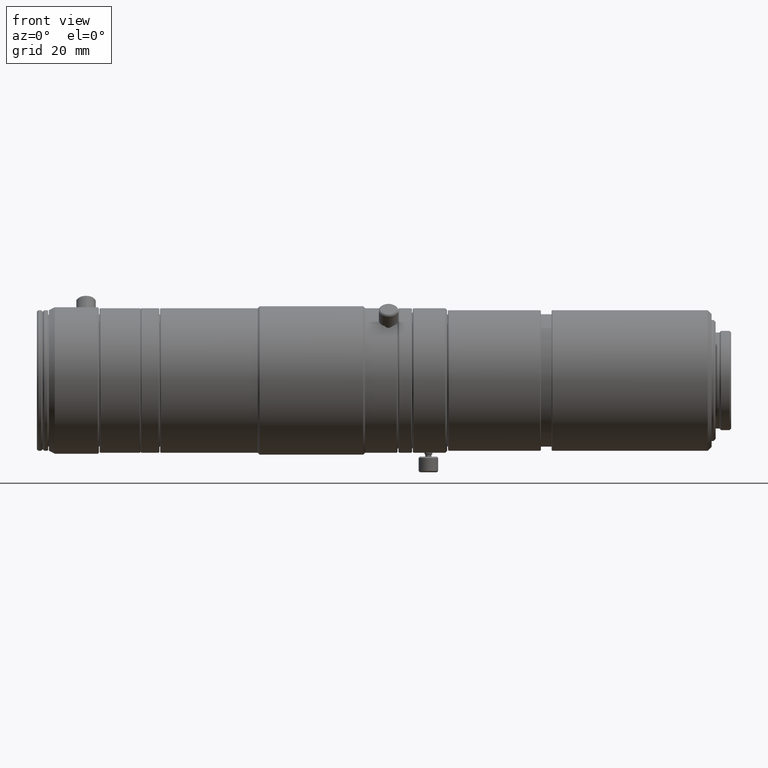
[diagram: clean part render]
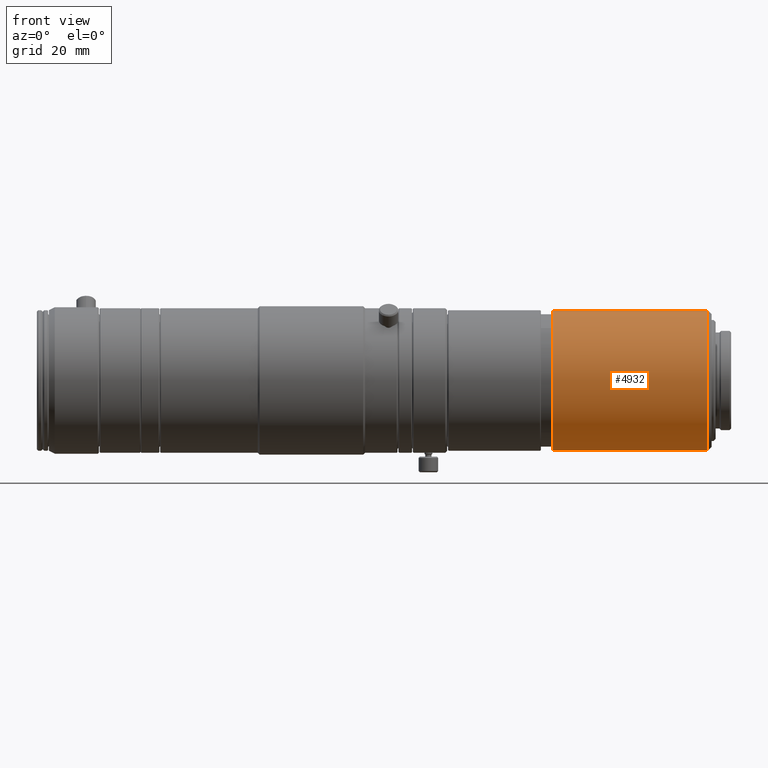
[diagram: same view with one face highlighted and labeled with its STEP entity id]
A machine part, front view. The second image highlights one B-rep face of the part: STEP entity #4932.
In plain terms, the highlighted cylindrical surface (partial cylindrical patch) has radius 18 mm, axis along (1, -0, -0).
Its self-contained STEP definition (entity closure, byte-faithful):
#227 = ORIENTED_EDGE ( 'NONE', *, *, #5833, .F. ) ;
#257 = ORIENTED_EDGE ( 'NONE', *, *, #5832, .T. ) ;
#274 = ORIENTED_EDGE ( 'NONE', *, *, #5353, .F. ) ;
#288 = ORIENTED_EDGE ( 'NONE', *, *, #5350, .T. ) ;
#478 = VERTEX_POINT ( 'NONE', #4625 ) ;
#479 = VERTEX_POINT ( 'NONE', #4667 ) ;
#483 = VERTEX_POINT ( 'NONE', #4878 ) ;
#484 = VERTEX_POINT ( 'NONE', #4660 ) ;
#901 = FACE_OUTER_BOUND ( 'NONE', #5442, .T. ) ;
#905 = CYLINDRICAL_SURFACE ( 'NONE', #5033, 18.00000000000007100 ) ;
#1151 = LINE ( 'NONE', #1785, #1155 ) ;
#1155 = VECTOR ( 'NONE', #1790, 1000.000000000000000 ) ;
#1157 = LINE ( 'NONE', #1791, #1159 ) ;
#1159 = VECTOR ( 'NONE', #1792, 1000.000000000000000 ) ;
#1359 = DIRECTION ( 'NONE',  ( 0.0000000000000000000, 0.0000000000000000000, -1.000000000000000000 ) ) ;
#1361 = DIRECTION ( 'NONE',  ( 1.000000000000000000, -0.0000000000000000000, -0.0000000000000000000 ) ) ;
#1363 = CARTESIAN_POINT ( 'NONE',  ( 0.0000000000000000000, 0.0000000000000000000, 0.0000000000000000000 ) ) ;
#1785 = CARTESIAN_POINT ( 'NONE',  ( 0.0000000000000000000, 0.0000000000000000000, -18.00000000000007100 ) ) ;
#1790 = DIRECTION ( 'NONE',  ( 1.000000000000000000, -0.0000000000000000000, -0.0000000000000000000 ) ) ;
#1791 = CARTESIAN_POINT ( 'NONE',  ( 0.0000000000000000000, 2.204364238465244500E-015, 18.00000000000007100 ) ) ;
#1792 = DIRECTION ( 'NONE',  ( 1.000000000000000000, -0.0000000000000000000, -0.0000000000000000000 ) ) ;
#2283 = CIRCLE ( 'NONE', #4274, 18.00000000000007100 ) ;
#2284 = CIRCLE ( 'NONE', #4275, 18.00000000000007100 ) ;
#2839 = CARTESIAN_POINT ( 'NONE',  ( -59.32600000000002200, 0.0000000000000000000, 0.0000000000000000000 ) ) ;
#2840 = DIRECTION ( 'NONE',  ( 1.000000000000000000, -0.0000000000000000000, -0.0000000000000000000 ) ) ;
#2841 = DIRECTION ( 'NONE',  ( 0.0000000000000000000, 0.0000000000000000000, -1.000000000000000000 ) ) ;
#2842 = CARTESIAN_POINT ( 'NONE',  ( -19.52600000000001000, 0.0000000000000000000, 0.0000000000000000000 ) ) ;
#2843 = DIRECTION ( 'NONE',  ( 1.000000000000000000, -0.0000000000000000000, -0.0000000000000000000 ) ) ;
#2844 = DIRECTION ( 'NONE',  ( 0.0000000000000000000, 0.0000000000000000000, -1.000000000000000000 ) ) ;
#4274 = AXIS2_PLACEMENT_3D ( 'NONE', #2839, #2840, #2841 ) ;
#4275 = AXIS2_PLACEMENT_3D ( 'NONE', #2842, #2843, #2844 ) ;
#4625 = CARTESIAN_POINT ( 'NONE',  ( -59.32600000000002200, 0.0000000000000000000, -18.00000000000007100 ) ) ;
#4660 = CARTESIAN_POINT ( 'NONE',  ( -19.52600000000001000, 0.0000000000000000000, 18.00000000000007100 ) ) ;
#4667 = CARTESIAN_POINT ( 'NONE',  ( -59.32600000000002200, 2.204364238465244500E-015, 18.00000000000007100 ) ) ;
#4878 = CARTESIAN_POINT ( 'NONE',  ( -19.52600000000001000, 2.204364238465244500E-015, -18.00000000000007100 ) ) ;
#4932 = ADVANCED_FACE ( 'NONE', ( #901 ), #905, .T. ) ;
#5033 = AXIS2_PLACEMENT_3D ( 'NONE', #1363, #1361, #1359 ) ;
#5350 = EDGE_CURVE ( 'NONE', #478, #483, #1151, .T. ) ;
#5353 = EDGE_CURVE ( 'NONE', #479, #484, #1157, .T. ) ;
#5442 = EDGE_LOOP ( 'NONE', ( #274, #257, #288, #227 ) ) ;
#5832 = EDGE_CURVE ( 'NONE', #479, #478, #2283, .T. ) ;
#5833 = EDGE_CURVE ( 'NONE', #484, #483, #2284, .T. ) ;